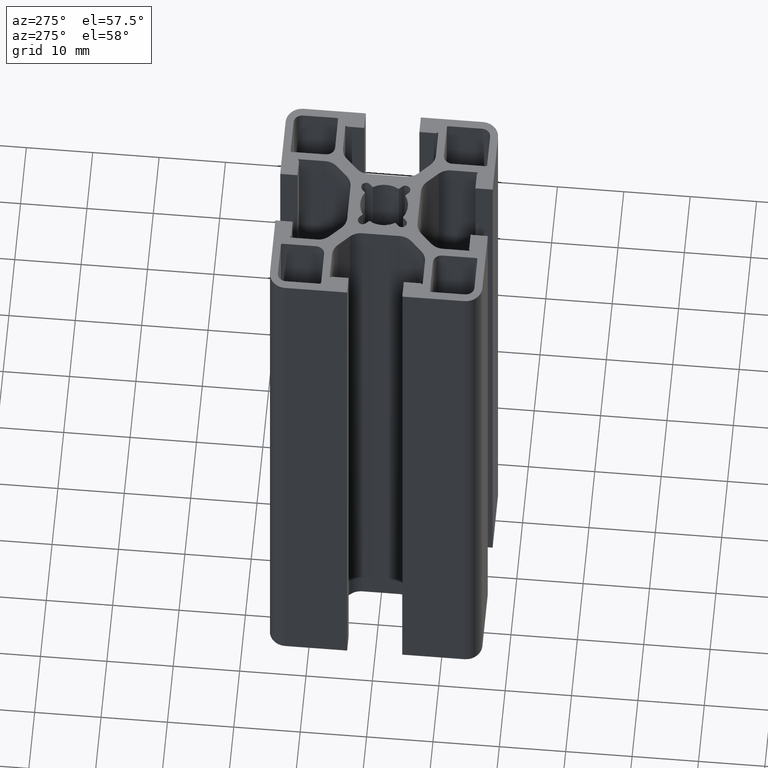
[diagram: clean part render]
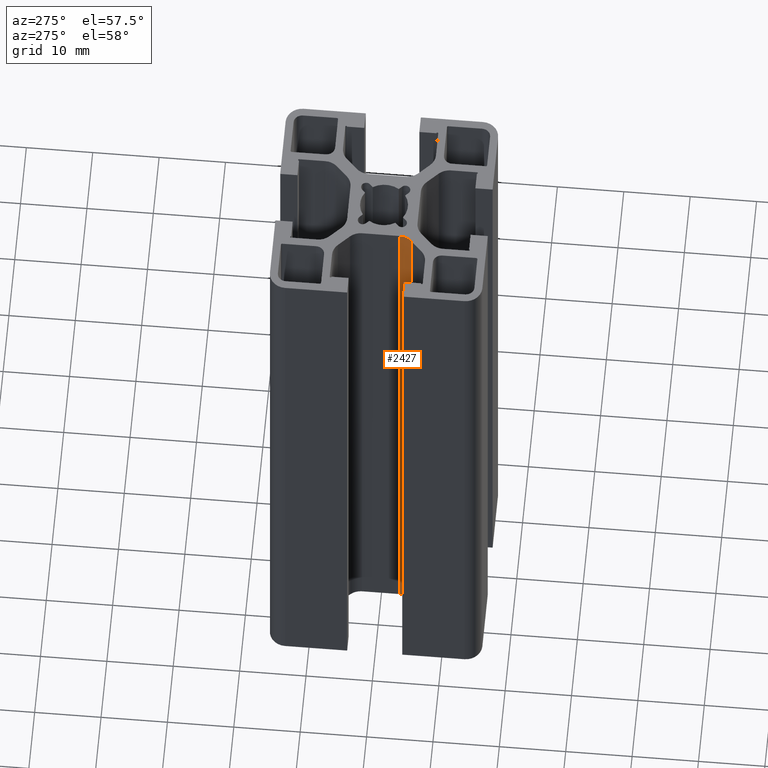
[diagram: same view with one face highlighted and labeled with its STEP entity id]
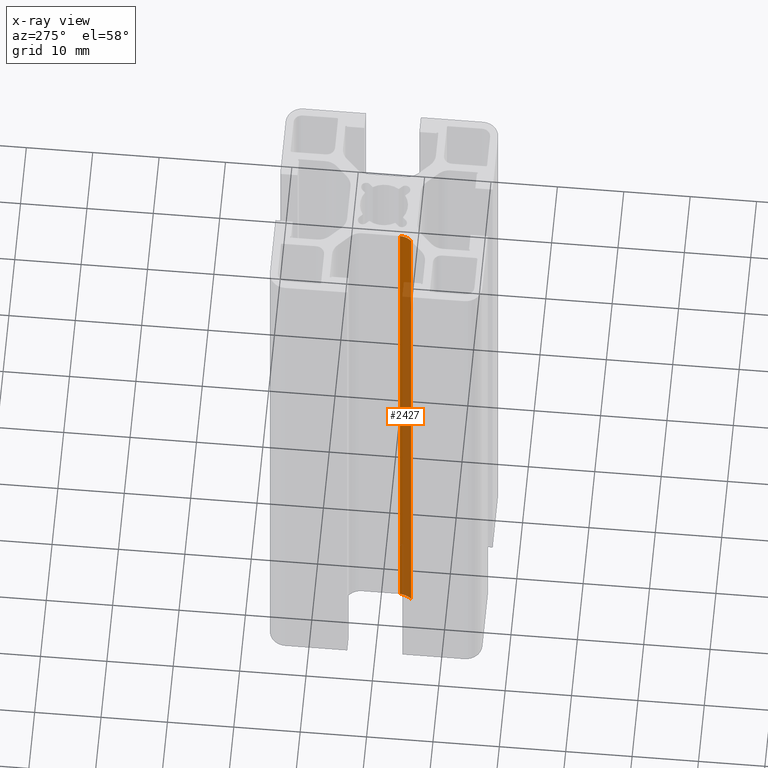
[diagram: x-ray of the same camera — body ghosted, the highlighted face saturated]
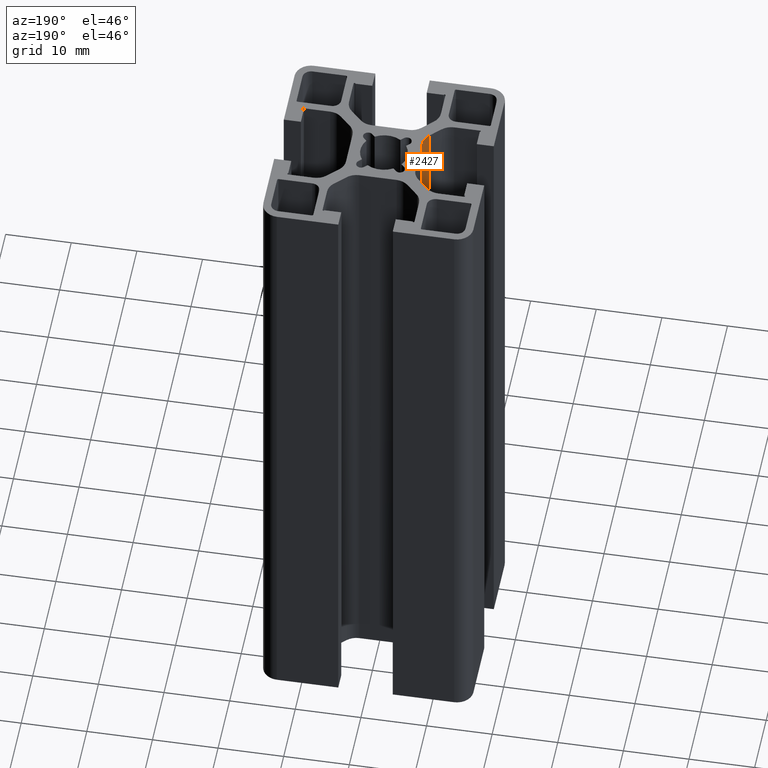
[diagram: same view with one face highlighted and labeled with its STEP entity id]
A machine part, auxiliary view. The second image highlights one B-rep face of the part: STEP entity #2427.
The next image is the same camera in x-ray: the body ghosted, the highlighted face saturated — about 68% of this face is hidden behind the body in this view.
A second angle (auxiliary view) of the same face is appended — the face is thin or edge-on in the first view.
In plain terms, the highlighted cylindrical surface (edge-blend (fillet) strip) has radius 2.5 mm, axis along (0, 0, 1).
Its self-contained STEP definition (entity closure, byte-faithful):
#105=CIRCLE('',#2632,2.5);
#106=CIRCLE('',#2633,2.5);
#169=CYLINDRICAL_SURFACE('',#2631,2.5);
#271=FACE_OUTER_BOUND('',#393,.T.);
#393=EDGE_LOOP('',(#1907,#1908,#1909,#1910));
#625=LINE('',#3940,#881);
#626=LINE('',#3946,#882);
#881=VECTOR('',#3219,100.);
#882=VECTOR('',#3226,100.);
#1127=VERTEX_POINT('',#3936);
#1128=VERTEX_POINT('',#3938);
#1129=VERTEX_POINT('',#3942);
#1130=VERTEX_POINT('',#3944);
#1457=EDGE_CURVE('',#1127,#1128,#625,.T.);
#1458=EDGE_CURVE('',#1129,#1127,#105,.T.);
#1459=EDGE_CURVE('',#1130,#1128,#106,.T.);
#1460=EDGE_CURVE('',#1129,#1130,#626,.T.);
#1907=ORIENTED_EDGE('',*,*,#1458,.T.);
#1908=ORIENTED_EDGE('',*,*,#1457,.T.);
#1909=ORIENTED_EDGE('',*,*,#1459,.F.);
#1910=ORIENTED_EDGE('',*,*,#1460,.F.);
#2427=ADVANCED_FACE('',(#271),#169,.F.);
#2631=AXIS2_PLACEMENT_3D('',#3941,#3220,#3221);
#2632=AXIS2_PLACEMENT_3D('',#3943,#3222,#3223);
#2633=AXIS2_PLACEMENT_3D('',#3945,#3224,#3225);
#3219=DIRECTION('',(0.,0.,1.));
#3220=DIRECTION('center_axis',(0.,0.,1.));
#3221=DIRECTION('ref_axis',(-0.707106781186548,0.707106781186548,0.));
#3222=DIRECTION('center_axis',(0.,0.,-1.));
#3223=DIRECTION('ref_axis',(-0.707106781186548,0.707106781186548,0.));
#3224=DIRECTION('center_axis',(0.,0.,-1.));
#3225=DIRECTION('ref_axis',(-0.707106781186548,0.707106781186548,0.));
#3226=DIRECTION('',(0.,0.,1.));
#3936=CARTESIAN_POINT('',(-6.03223871093363,-4.61801961686639,0.));
#3938=CARTESIAN_POINT('',(-6.03223871093363,-4.61801961686639,100.));
#3940=CARTESIAN_POINT('',(-6.03223871093363,-4.61801961686639,0.));
#3941=CARTESIAN_POINT('Origin',(-7.80000566389999,-2.85025266390003,0.));
#3942=CARTESIAN_POINT('',(-5.30000566389999,-2.85025266390003,0.));
#3943=CARTESIAN_POINT('Origin',(-7.80000566389999,-2.85025266390003,0.));
#3944=CARTESIAN_POINT('',(-5.30000566389999,-2.85025266390003,100.));
#3945=CARTESIAN_POINT('Origin',(-7.80000566389999,-2.85025266390003,100.));
#3946=CARTESIAN_POINT('',(-5.30000566389999,-2.85025266390003,0.));